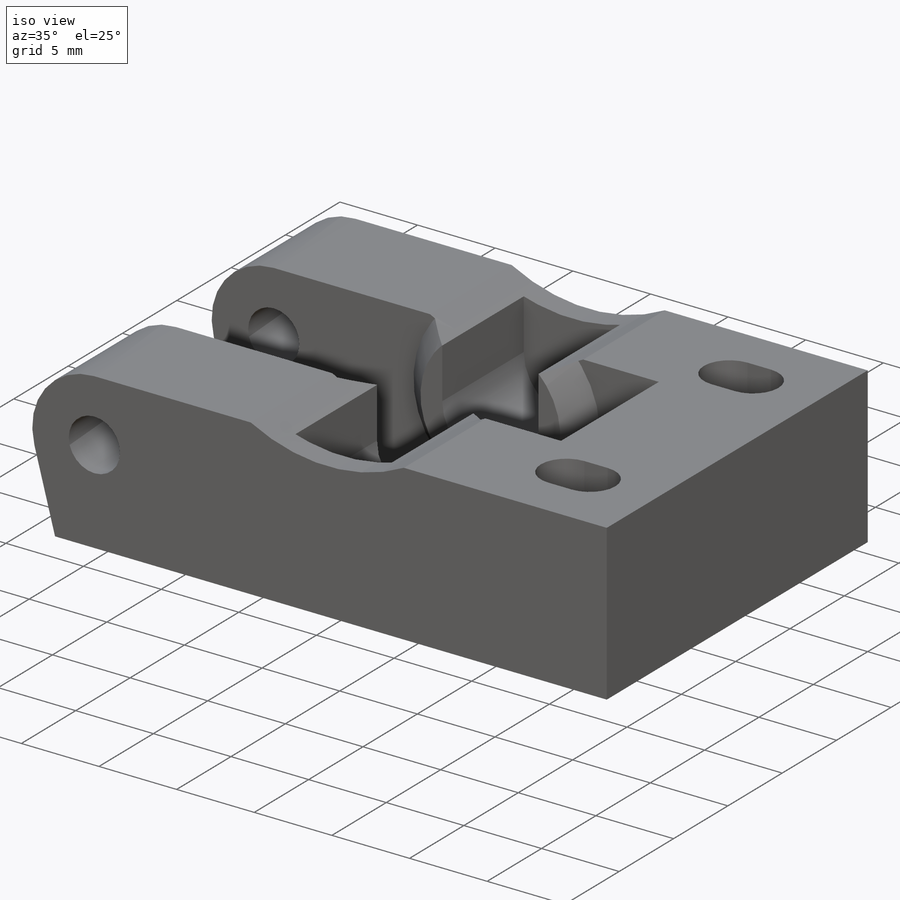
[diagram: iso view]
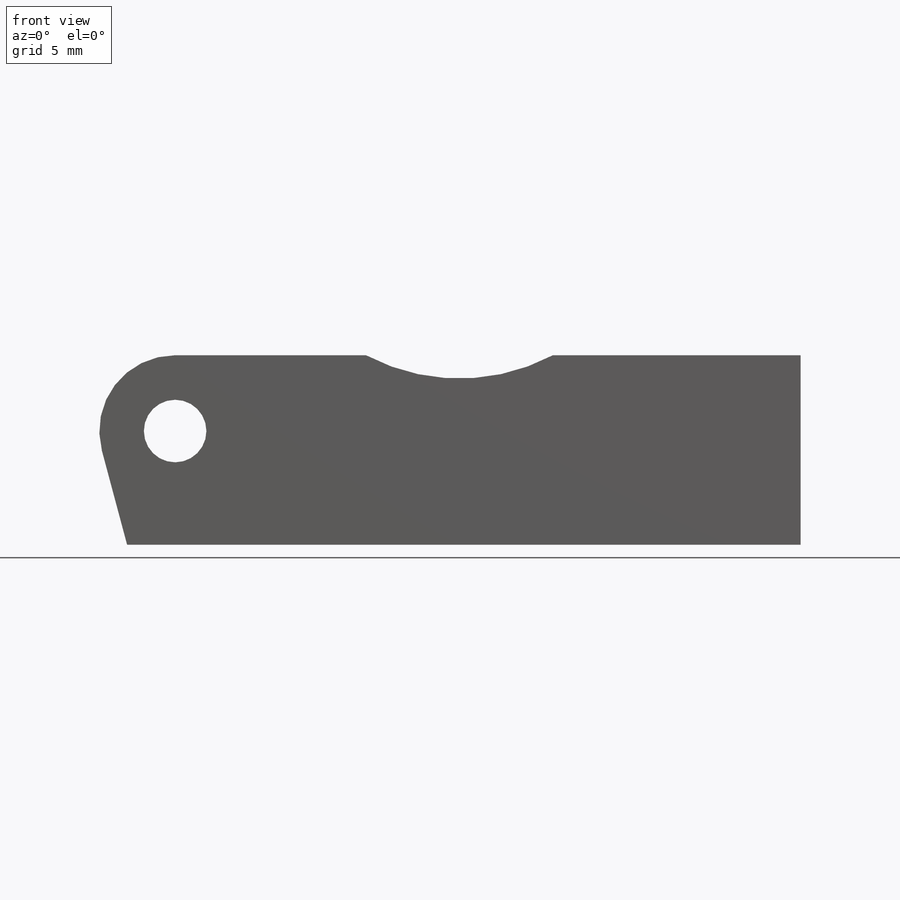
[diagram: front view]
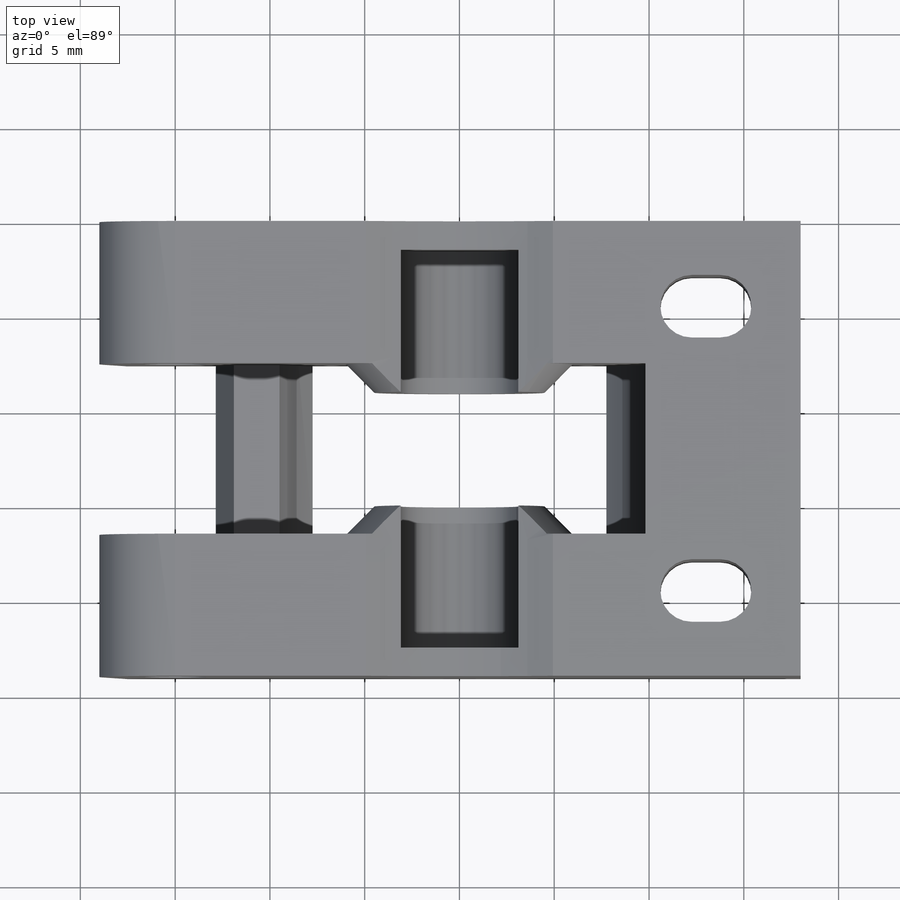
[diagram: top view]
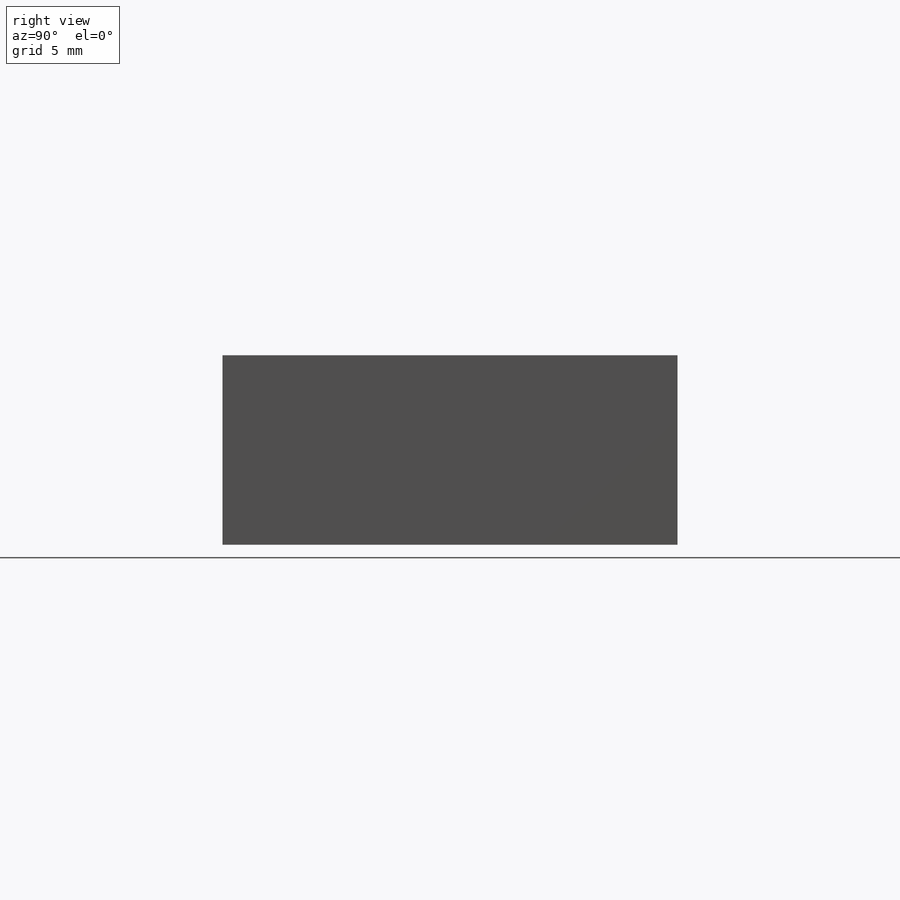
[diagram: right view]
SOLIDWORKS PART (.sldprt)
format: sldprt  version: not decoded by parser v0  size: 314,368 bytes
history: native  units: mm
features: sketch x7, cut_extrude x4, extrude x3, material x1, plane x1, chamfer x1 (+16 scaffold rows collapsed)
feature tree (33):
  scaffold x16  (default folders/planes/origin — collapsed)
  material  "Material <not specified>"
  sketch  "Sketch1"  dims[c1.D2=6.3mm c1.D3=3.3mm c1.D4=4.0mm c1.D1=4.0mm c2.D4=14.0mm c2.D5=10.0mm c2.D6=17.0mm c2.D7=32.0mm c3.D5=10.0mm c3.D1=15.0mm c3.D2=4.0mm c3.D6=~2.474445mm c4.D6=105.0deg c4.D7=18.0mm]
  extrude  "Boss-Extrude1"  Depth=24mm
  plane  "Plane1"  Offset=12mm
  sketch  "Sketch2"  dims[c1.D1=19.6mm c1.D2=12.0mm c1.D3=~5.070069mm c2.D3=15.0deg]
  cut_extrude  "Cut-Extrude1"  Depth=4.5mm
  sketch  "Sketch4"  dims[D1=3.1mm]
  cut_extrude  "Cut-Extrude3"  Depth=10.5mm
  sketch  "Sketch3"  dims[D2=1.65mm D1=1.5mm D3=13.0mm D4=7.5mm]
  cut_extrude  "Cut-Extrude2"  [1 undecoded]
  sketch  "Sketch5"  dims[D1=4.5mm]
  extrude  "Boss-Extrude2"  Depth=1.5mm
  sketch  "Sketch6"  dims[D1=4.5mm]
  extrude  "Boss-Extrude3"  Depth=1.5mm
  chamfer  "Chamfer1"  Distance=1.5mm Angle=45deg
  sketch  "Sketch7"  dims[D2=21.0mm D1=13.27mm]
  cut_extrude  "Cut-Extrude4"  [1 undecoded]
decode coverage: 13 of 15 modeling features carry decoded parameters
note: ~ marks probable driven/reference dimensions
note: 2 parameter values undecoded
note: suppression state not decoded; provenance and decode notes live in map.json
